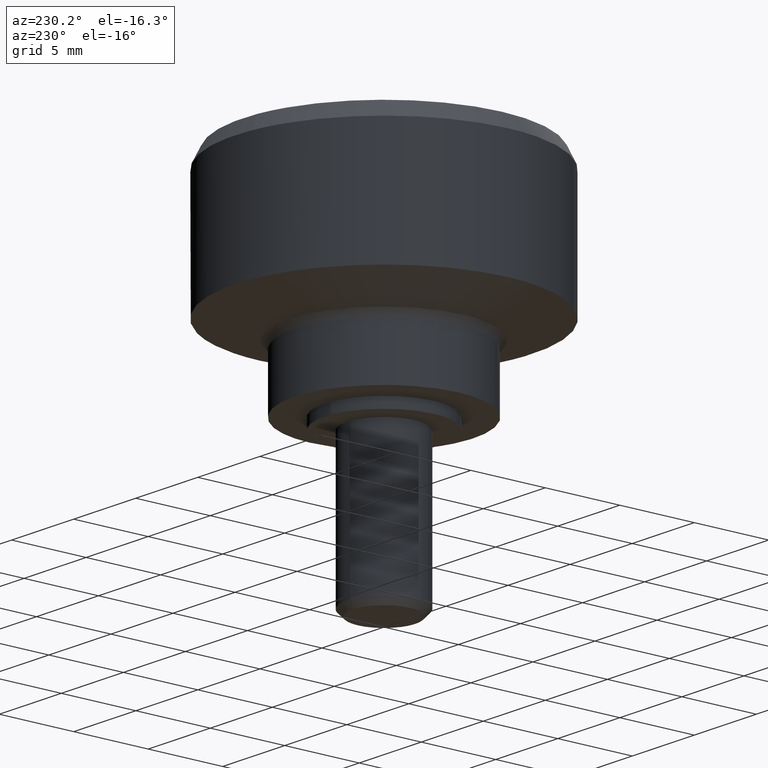
[diagram: clean part render]
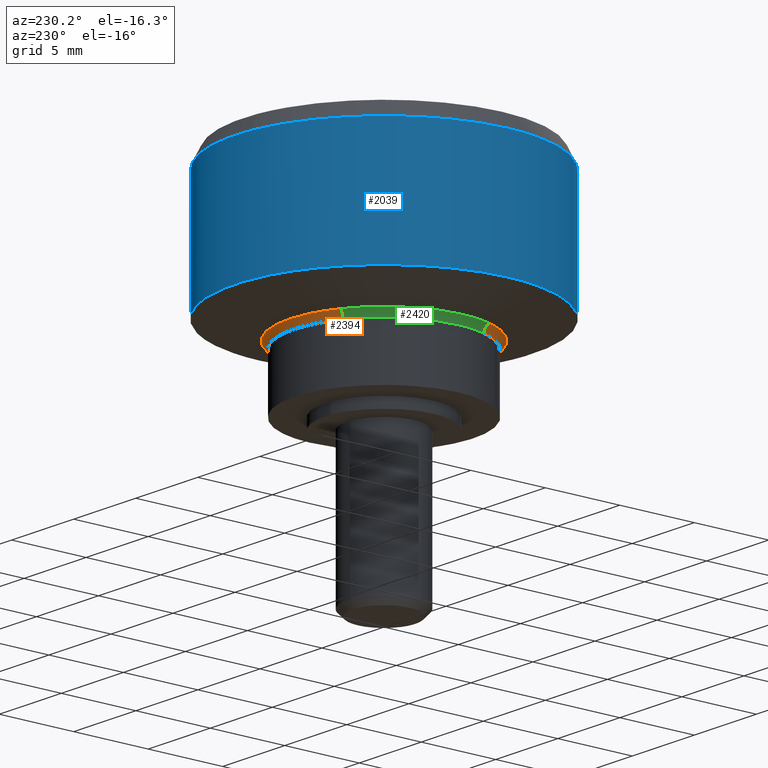
[diagram: same view with three faces highlighted in distinct colors, each labeled with its STEP entity id]
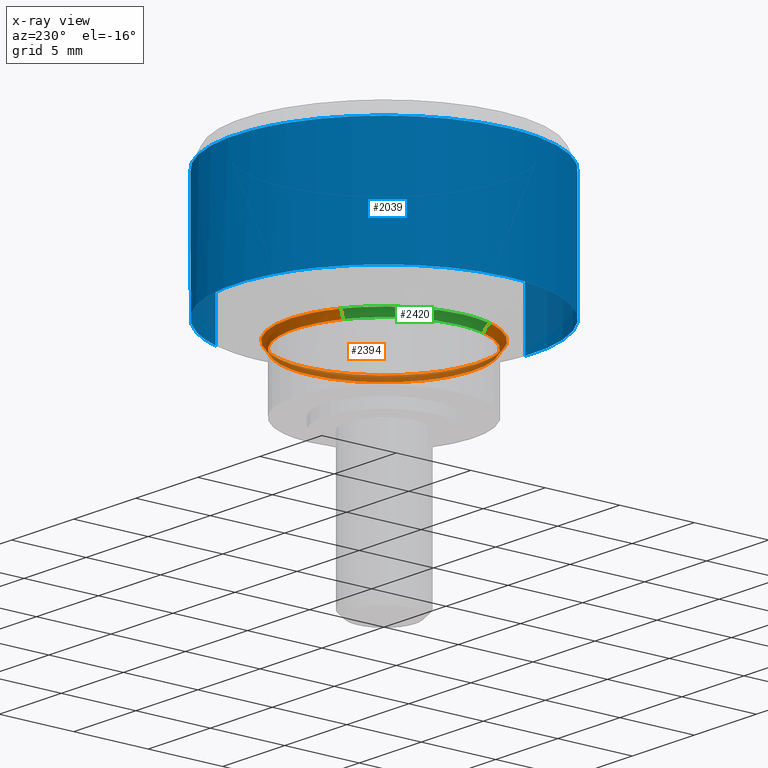
[diagram: x-ray of the same camera — body ghosted, the three highlighted faces saturated]
A machine part, auxiliary view with three faces highlighted in distinct colors.
The next image is the same camera in x-ray (body ghosted, the three faces saturated) — at least one of them is partly hidden behind the body in this view.
Their STEP definitions:

[orange] entity #2394 — the highlighted face is a freeform B-spline surface patch.
#1465=CARTESIAN_POINT('',(-2.250409667842005,-5.561983128963910,4.336761000009336));
#1466=VERTEX_POINT('',#1465);
#1467=CARTESIAN_POINT('',(-5.657943215357182,-1.996917267137929,4.336761000085410));
#1468=VERTEX_POINT('',#1467);
#1469=CARTESIAN_POINT('',(-2.250409667842005,-5.561983128963910,4.336761000009336));
#1470=CARTESIAN_POINT('',(-4.757737865000474,-4.547504033198051,4.336761000030990));
#1471=CARTESIAN_POINT('',(-5.657943215357182,-1.996917267137929,4.336761000085410));
#1479=(BOUNDED_CURVE()B_SPLINE_CURVE(2,(#1469,#1470,#1471),.UNSPECIFIED.,.F.,.U.)B_SPLINE_CURVE_WITH_KNOTS((3,3),(0.813681085114282,0.943451214484705),.UNSPECIFIED.)CURVE()GEOMETRIC_REPRESENTATION_ITEM()RATIONAL_B_SPLINE_CURVE((0.888794390059269,0.814213340013481,0.897469272749625))REPRESENTATION_ITEM(''));
#1480=EDGE_CURVE('',#1466,#1468,#1479,.T.);
#1497=CARTESIAN_POINT('',(-2.953789897803762,5.222559261476352,4.336761000082190));
#1498=VERTEX_POINT('',#1497);
#1512=CARTESIAN_POINT('',(6.0,0.0,4.336761000000000));
#1513=VERTEX_POINT('',#1512);
#1514=CARTESIAN_POINT('',(-2.953789897803762,5.222559261476353,4.336761000082190));
#1515=CARTESIAN_POINT('',(-1.579206576138484,6.000000000000001,4.336761000000000));
#1516=CARTESIAN_POINT('',(0.0,6.0,4.336761000000000));
#1517=CARTESIAN_POINT('',(6.0,6.0,4.336760999999999));
#1518=CARTESIAN_POINT('',(6.0,0.0,4.336761000000000));
#1526=(BOUNDED_CURVE()B_SPLINE_CURVE(2,(#1514,#1515,#1516,#1517,#1518),.UNSPECIFIED.,.F.,.U.)B_SPLINE_CURVE_WITH_KNOTS((3,2,3),(0.166092119980795,0.250000000000000,0.500000000000000),.UNSPECIFIED.)CURVE()GEOMETRIC_REPRESENTATION_ITEM()RATIONAL_B_SPLINE_CURVE((0.869379581133902,0.901695803749449,1.0,0.707106781186548,1.0))REPRESENTATION_ITEM(''));
#1527=EDGE_CURVE('',#1498,#1513,#1526,.T.);
#1529=CARTESIAN_POINT('',(1.400665940389359,-5.834221021129725,4.336761000000011));
#1530=VERTEX_POINT('',#1529);
#1531=CARTESIAN_POINT('',(6.0,0.0,4.336761000000000));
#1532=CARTESIAN_POINT('',(6.0,-4.730023812553404,4.336761000000001));
#1533=CARTESIAN_POINT('',(1.400665940389359,-5.834221021129724,4.336761000000011));
#1541=(BOUNDED_CURVE()B_SPLINE_CURVE(2,(#1531,#1532,#1533),.UNSPECIFIED.,.F.,.U.)B_SPLINE_CURVE_WITH_KNOTS((3,3),(0.500000000000000,0.710110004683507),.UNSPECIFIED.)CURVE()GEOMETRIC_REPRESENTATION_ITEM()RATIONAL_B_SPLINE_CURVE((1.0,0.753840817693352,0.921445690965409))REPRESENTATION_ITEM(''));
#1542=EDGE_CURVE('',#1513,#1530,#1541,.T.);
#1620=CARTESIAN_POINT('',(1.400665940389359,-5.834221021129724,4.336761000000011));
#1621=CARTESIAN_POINT('',(0.710143542809743,-6.0,4.336760999999999));
#1622=CARTESIAN_POINT('',(0.0,-6.0,4.336761000000000));
#1623=CARTESIAN_POINT('',(-1.167832356823583,-6.0,4.336761000000001));
#1624=CARTESIAN_POINT('',(-2.250409667842005,-5.561983128963910,4.336761000009336));
#1632=(BOUNDED_CURVE()B_SPLINE_CURVE(2,(#1620,#1621,#1622,#1623,#1624),.UNSPECIFIED.,.F.,.U.)B_SPLINE_CURVE_WITH_KNOTS((3,2,3),(0.710110004683507,0.750000000000000,0.813681085114282),.UNSPECIFIED.)CURVE()GEOMETRIC_REPRESENTATION_ITEM()RATIONAL_B_SPLINE_CURVE((0.921445690965409,0.953265963493195,1.0,0.925392968013378,0.888794390059269))REPRESENTATION_ITEM(''));
#1633=EDGE_CURVE('',#1530,#1466,#1632,.T.);
#1690=CARTESIAN_POINT('',(-1.588775553440524,6.143339237181422,4.812278946778488));
#1691=VERTEX_POINT('',#1690);
#1697=CARTESIAN_POINT('',(-3.123857866102979,5.523254325640013,4.812278568502218));
#1698=VERTEX_POINT('',#1697);
#1699=CARTESIAN_POINT('',(-3.123857866102979,5.523254325640013,4.812278568502218));
#1700=CARTESIAN_POINT('',(-2.397111881509354,5.934289303073338,4.812278784216334));
#1701=CARTESIAN_POINT('',(-1.588775553440524,6.143339237181422,4.812278946778488));
#1709=(BOUNDED_CURVE()B_SPLINE_CURVE(2,(#1699,#1700,#1701),.UNSPECIFIED.,.F.,.U.)B_SPLINE_CURVE_WITH_KNOTS((3,3),(0.166092119980186,0.207273770514564),.UNSPECIFIED.)CURVE()GEOMETRIC_REPRESENTATION_ITEM()RATIONAL_B_SPLINE_CURVE((0.869379581133433,0.885240253409031,0.916996154823670))REPRESENTATION_ITEM(''));
#1710=EDGE_CURVE('',#1698,#1691,#1709,.T.);
#1727=CARTESIAN_POINT('',(-5.983706029109358,-2.111892155186222,4.812278568620588));
#1728=VERTEX_POINT('',#1727);
#1742=CARTESIAN_POINT('',(1.588775549394165,-6.143339221669838,4.812279000000376));
#1743=VERTEX_POINT('',#1742);
#1744=CARTESIAN_POINT('',(1.588775549394165,-6.143339221669838,4.812279000000376));
#1745=CARTESIAN_POINT('',(0.807244089216719,-6.345457000000002,4.812279000000100));
#1746=CARTESIAN_POINT('',(0.0,-6.345457000000000,4.812279000000100));
#1747=CARTESIAN_POINT('',(-4.489509417464306,-6.345457000000000,4.812279000000099));
#1748=CARTESIAN_POINT('',(-5.983706029109359,-2.111892155186222,4.812278568620588));
#1756=(BOUNDED_CURVE()B_SPLINE_CURVE(2,(#1744,#1745,#1746,#1747,#1748),.UNSPECIFIED.,.F.,.U.)B_SPLINE_CURVE_WITH_KNOTS((3,2,3),(0.707273770289226,0.750000000000000,0.943451214484738),.UNSPECIFIED.)CURVE()GEOMETRIC_REPRESENTATION_ITEM()RATIONAL_B_SPLINE_CURVE((0.916996154476147,0.949943108208994,1.0,0.773357804424774,0.897469272749668))REPRESENTATION_ITEM(''));
#1757=EDGE_CURVE('',#1743,#1728,#1756,.T.);
#1863=CARTESIAN_POINT('',(6.345457000000000,0.0,4.812279000000100));
#1864=VERTEX_POINT('',#1863);
#1865=CARTESIAN_POINT('',(6.345457000000000,0.0,4.812279000000100));
#1866=CARTESIAN_POINT('',(6.345457000000002,-4.913177755351818,4.812279000000101));
#1867=CARTESIAN_POINT('',(1.588775549394165,-6.143339221669838,4.812279000000376));
#1875=(BOUNDED_CURVE()B_SPLINE_CURVE(2,(#1865,#1866,#1867),.UNSPECIFIED.,.F.,.U.)B_SPLINE_CURVE_WITH_KNOTS((3,3),(0.500000000000000,0.707273770289227),.UNSPECIFIED.)CURVE()GEOMETRIC_REPRESENTATION_ITEM()RATIONAL_B_SPLINE_CURVE((1.0,0.757163672977553,0.916996154476148))REPRESENTATION_ITEM(''));
#1876=EDGE_CURVE('',#1864,#1743,#1875,.T.);
#1878=CARTESIAN_POINT('',(-1.588775553440524,6.143339237181422,4.812278946778488));
#1879=CARTESIAN_POINT('',(-0.807244084734988,6.345456999999999,4.812279000000100));
#1880=CARTESIAN_POINT('',(0.0,6.345457000000000,4.812279000000100));
#1881=CARTESIAN_POINT('',(6.345457000000001,6.345457000000001,4.812279000000099));
#1882=CARTESIAN_POINT('',(6.345457000000000,0.0,4.812279000000100));
#1890=(BOUNDED_CURVE()B_SPLINE_CURVE(2,(#1878,#1879,#1880,#1881,#1882),.UNSPECIFIED.,.F.,.U.)B_SPLINE_CURVE_WITH_KNOTS((3,2,3),(0.207273770514564,0.250000000000000,0.500000000000000),.UNSPECIFIED.)CURVE()GEOMETRIC_REPRESENTATION_ITEM()RATIONAL_B_SPLINE_CURVE((0.916996154823670,0.949943108472993,1.0,0.707106781186548,1.0))REPRESENTATION_ITEM(''));
#1891=EDGE_CURVE('',#1691,#1864,#1890,.T.);
#2323=CARTESIAN_POINT('',(-2.954206743344072,5.223298383775240,4.307643239702532));
#2324=CARTESIAN_POINT('',(-2.494850538449292,5.483102265995020,4.307643239702533));
#2325=CARTESIAN_POINT('',(-1.997199685830433,5.658743403202467,4.307643239702532));
#2326=CARTESIAN_POINT('',(3.661543717372034,7.655943089032901,4.307643239702532));
#2327=CARTESIAN_POINT('',(5.658743403202467,1.997199685830434,4.307643239702532));
#2328=CARTESIAN_POINT('',(7.655943089032901,-3.661543717372033,4.307643239702532));
#2329=CARTESIAN_POINT('',(1.997199685830435,-5.658743403202467,4.307643239702532));
#2330=CARTESIAN_POINT('',(-3.661543717372032,-7.655943089032901,4.307643239702532));
#2331=CARTESIAN_POINT('',(-5.658743403202467,-1.997199685830435,4.307643239702532));
#2332=CARTESIAN_POINT('',(-2.942461679212940,5.202532073282011,4.716622733270996));
#2333=CARTESIAN_POINT('',(-2.484931740573114,5.461303051063038,4.716622733270994));
#2334=CARTESIAN_POINT('',(-1.989259402556216,5.636245890351693,4.716622733270995));
#2335=CARTESIAN_POINT('',(3.646986487795477,7.625505292907909,4.716622733270996));
#2336=CARTESIAN_POINT('',(5.636245890351693,1.989259402556216,4.716622733270995));
#2337=CARTESIAN_POINT('',(7.625505292907909,-3.646986487795473,4.716622733270996));
#2338=CARTESIAN_POINT('',(1.989259402556217,-5.636245890351693,4.716622733270995));
#2339=CARTESIAN_POINT('',(-3.646986487795473,-7.625505292907909,4.716622733270996));
#2340=CARTESIAN_POINT('',(-5.636245890351693,-1.989259402556219,4.716622733270995));
#2341=CARTESIAN_POINT('',(-3.137560499024141,5.547484014269984,4.820439982605432));
#2342=CARTESIAN_POINT('',(-2.649694209128654,5.823412704833858,4.820439982605433));
#2343=CARTESIAN_POINT('',(-2.121156502348136,6.009955063572760,4.820439982605433));
#2344=CARTESIAN_POINT('',(3.888798561224623,8.131111565920898,4.820439982605432));
#2345=CARTESIAN_POINT('',(6.009955063572760,2.121156502348136,4.820439982605433));
#2346=CARTESIAN_POINT('',(8.131111565920898,-3.888798561224620,4.820439982605432));
#2347=CARTESIAN_POINT('',(2.121156502348138,-6.009955063572758,4.820439982605433));
#2348=CARTESIAN_POINT('',(-3.888798561224618,-8.131111565920898,4.820439982605432));
#2349=CARTESIAN_POINT('',(-6.009955063572758,-2.121156502348138,4.820439982605433));
#2357=(BOUNDED_SURFACE()B_SPLINE_SURFACE(2,2,((#2323,#2332,#2341),(#2324,#2333,#2342),(#2325,#2334,#2343),(#2326,#2335,#2344),(#2327,#2336,#2345),(#2328,#2337,#2346),(#2329,#2338,#2347),(#2330,#2339,#2348),(#2331,#2340,#2349)),.UNSPECIFIED.,.F.,.F.,.U.)B_SPLINE_SURFACE_WITH_KNOTS((3,2,2,2,3),(3,3),(0.0,1.267152919695139,11.826770654257521,22.386388388819899,32.946006123382283),(0.0,0.714714036579353),.UNSPECIFIED.)GEOMETRIC_REPRESENTATION_ITEM()RATIONAL_B_SPLINE_SURFACE(((0.859647271357752,0.666406561997751,0.863418595236505),(0.884124150461246,0.685381266385553,0.888002855869280),(0.916330560634972,0.710347975166311,0.920350557486350),(0.647943553233460,0.502291870242232,0.650786120267418),(0.916330560634972,0.710347975166311,0.920350557486350),(0.647943553233460,0.502291870242232,0.650786120267418),(0.916330560634972,0.710347975166311,0.920350557486350),(0.647943553233460,0.502291870242232,0.650786120267418),(0.916330560634972,0.710347975166311,0.920350557486350)))REPRESENTATION_ITEM('')SURFACE());
#2358=ORIENTED_EDGE('',*,*,#1527,.F.);
#2359=CARTESIAN_POINT('',(-2.953789897803762,5.222559261476351,4.336761000082190));
#2360=CARTESIAN_POINT('',(-2.953789897861866,5.222559261580685,4.700004774826589));
#2361=CARTESIAN_POINT('',(-3.123857866102979,5.523254325640014,4.812278568502218));
#2369=(BOUNDED_CURVE()B_SPLINE_CURVE(2,(#2359,#2360,#2361),.UNSPECIFIED.,.F.,.U.)B_SPLINE_CURVE_WITH_KNOTS((3,3),(-1.673208012036451,-0.312327419593317),.UNSPECIFIED.)CURVE()GEOMETRIC_REPRESENTATION_ITEM()RATIONAL_B_SPLINE_CURVE((0.842900705191702,0.683324374790841,0.846329367210105))REPRESENTATION_ITEM(''));
#2370=EDGE_CURVE('',#1498,#1698,#2369,.T.);
#2371=ORIENTED_EDGE('',*,*,#2370,.T.);
#2372=ORIENTED_EDGE('',*,*,#1710,.T.);
#2373=ORIENTED_EDGE('',*,*,#1891,.T.);
#2374=ORIENTED_EDGE('',*,*,#1876,.T.);
#2375=ORIENTED_EDGE('',*,*,#1757,.T.);
#2376=CARTESIAN_POINT('',(-5.657943215357182,-1.996917267137929,4.336761000085411));
#2377=CARTESIAN_POINT('',(-5.657943215474208,-1.996917267179222,4.700004775413200));
#2378=CARTESIAN_POINT('',(-5.983706029109358,-2.111892155186222,4.812278568620588));
#2386=(BOUNDED_CURVE()B_SPLINE_CURVE(2,(#2376,#2377,#2378),.UNSPECIFIED.,.F.,.U.)B_SPLINE_CURVE_WITH_KNOTS((3,3),(-1.673208012021567,-0.312327417816287),.UNSPECIFIED.)CURVE()GEOMETRIC_REPRESENTATION_ITEM()RATIONAL_B_SPLINE_CURVE((0.898479810761481,0.728381351428666,0.902134552023553))REPRESENTATION_ITEM(''));
#2387=EDGE_CURVE('',#1468,#1728,#2386,.T.);
#2388=ORIENTED_EDGE('',*,*,#2387,.F.);
#2389=ORIENTED_EDGE('',*,*,#1480,.F.);
#2390=ORIENTED_EDGE('',*,*,#1633,.F.);
#2391=ORIENTED_EDGE('',*,*,#1542,.F.);
#2392=EDGE_LOOP('',(#2358,#2371,#2372,#2373,#2374,#2375,#2388,#2389,#2390,#2391));
#2393=FACE_OUTER_BOUND('',#2392,.T.);
#2394=ADVANCED_FACE('',(#2393),#2357,.F.);

[blue] entity #2039 — the highlighted face is a freeform B-spline surface patch.
#1673=CARTESIAN_POINT('',(-10.0,0.0,6.0));
#1674=VERTEX_POINT('',#1673);
#1675=CARTESIAN_POINT('',(-2.503800040556031,9.681476403779540,6.000000000000462));
#1676=VERTEX_POINT('',#1675);
#1677=CARTESIAN_POINT('',(-10.0,0.0,6.0));
#1678=CARTESIAN_POINT('',(-10.0,7.742827278399353,6.0));
#1679=CARTESIAN_POINT('',(-2.503800040556032,9.681476403779540,6.000000000000462));
#1687=(BOUNDED_CURVE()B_SPLINE_CURVE(2,(#1677,#1678,#1679),.UNSPECIFIED.,.F.,.U.)B_SPLINE_CURVE_WITH_KNOTS((3,3),(0.0,0.207273770289201),.UNSPECIFIED.)CURVE()GEOMETRIC_REPRESENTATION_ITEM()RATIONAL_B_SPLINE_CURVE((1.0,0.757163672977583,0.916996154476108))REPRESENTATION_ITEM(''));
#1688=EDGE_CURVE('',#1674,#1676,#1687,.T.);
#1766=CARTESIAN_POINT('',(0.610483566912849,-9.981348096050251,6.0));
#1767=VERTEX_POINT('',#1766);
#1781=CARTESIAN_POINT('',(0.610483566912849,-9.981348096050251,6.0));
#1782=CARTESIAN_POINT('',(0.305526716204665,-9.999999999999998,6.000000000000001));
#1783=CARTESIAN_POINT('',(0.0,-10.0,6.0));
#1784=CARTESIAN_POINT('',(-10.000000000000002,-10.000000000000002,6.0));
#1785=CARTESIAN_POINT('',(-10.0,0.0,6.0));
#1793=(BOUNDED_CURVE()B_SPLINE_CURVE(2,(#1781,#1782,#1783,#1784,#1785),.UNSPECIFIED.,.F.,.U.)B_SPLINE_CURVE_WITH_KNOTS((3,2,3),(0.739332993849996,0.750000000000000,1.0),.UNSPECIFIED.)CURVE()GEOMETRIC_REPRESENTATION_ITEM()RATIONAL_B_SPLINE_CURVE((0.976072109415231,0.987502824934489,1.0,0.707106781186548,1.0))REPRESENTATION_ITEM(''));
#1794=EDGE_CURVE('',#1767,#1674,#1793,.T.);
#1817=CARTESIAN_POINT('',(9.361436365633708,3.516178205408258,6.0));
#1818=VERTEX_POINT('',#1817);
#1819=CARTESIAN_POINT('',(-2.503800040556032,9.681476403779540,6.000000000000462));
#1820=CARTESIAN_POINT('',(-1.272160680022289,10.000000000000002,6.0));
#1821=CARTESIAN_POINT('',(0.0,10.0,6.0));
#1822=CARTESIAN_POINT('',(6.926097172859107,9.999999999999998,6.0));
#1823=CARTESIAN_POINT('',(9.361436365633708,3.516178205408257,5.999999999999999));
#1831=(BOUNDED_CURVE()B_SPLINE_CURVE(2,(#1819,#1820,#1821,#1822,#1823),.UNSPECIFIED.,.F.,.U.)B_SPLINE_CURVE_WITH_KNOTS((3,2,3),(0.207273770289201,0.250000000000000,0.440284196857223),.UNSPECIFIED.)CURVE()GEOMETRIC_REPRESENTATION_ITEM()RATIONAL_B_SPLINE_CURVE((0.916996154476108,0.949943108208965,1.0,0.777068196372621,0.893499586402586))REPRESENTATION_ITEM(''));
#1832=EDGE_CURVE('',#1676,#1818,#1831,.T.);
#1915=CARTESIAN_POINT('',(9.361437029675599,3.516176437468118,14.0));
#1916=VERTEX_POINT('',#1915);
#1932=CARTESIAN_POINT('',(0.610485395348940,-9.981347984218679,13.999999999999870));
#1933=VERTEX_POINT('',#1932);
#1947=CARTESIAN_POINT('',(0.610485395348940,-9.981347984218679,13.999999999999870));
#1948=CARTESIAN_POINT('',(0.610483566912849,-9.981348096050251,6.0));
#1949=QUASI_UNIFORM_CURVE('',1,(#1947,#1948),.UNSPECIFIED.,.F.,.U.);
#1950=EDGE_CURVE('',#1933,#1767,#1949,.T.);
#1955=CARTESIAN_POINT('',(9.361437029675599,3.516176437468118,14.0));
#1956=CARTESIAN_POINT('',(9.361436365633708,3.516178205408258,6.0));
#1957=QUASI_UNIFORM_CURVE('',1,(#1955,#1956),.UNSPECIFIED.,.F.,.U.);
#1958=EDGE_CURVE('',#1916,#1818,#1957,.T.);
#1963=CARTESIAN_POINT('',(0.610485395348570,-9.981347984218667,14.199999999999999));
#1964=CARTESIAN_POINT('',(-9.370862588870097,-10.591833379567237,14.200000000000006));
#1965=CARTESIAN_POINT('',(-9.981347984218667,-0.610485395348570,14.199999999999999));
#1966=CARTESIAN_POINT('',(-10.591833379567237,9.370862588870097,14.200000000000006));
#1967=CARTESIAN_POINT('',(-0.610485395348570,9.981347984218667,14.199999999999999));
#1968=CARTESIAN_POINT('',(6.763695818030652,10.432372228693419,14.199999999999999));
#1969=CARTESIAN_POINT('',(9.361435787766570,3.516179743915722,14.200000000000010));
#1970=CARTESIAN_POINT('',(0.610485395348570,-9.981347984218667,5.795000000000000));
#1971=CARTESIAN_POINT('',(-9.370862588870097,-10.591833379567237,5.795000000000000));
#1972=CARTESIAN_POINT('',(-9.981347984218667,-0.610485395348570,5.795000000000000));
#1973=CARTESIAN_POINT('',(-10.591833379567237,9.370862588870097,5.795000000000000));
#1974=CARTESIAN_POINT('',(-0.610485395348570,9.981347984218667,5.795000000000000));
#1975=CARTESIAN_POINT('',(6.763695818030652,10.432372228693419,5.795000000000000));
#1976=CARTESIAN_POINT('',(9.361435787766570,3.516179743915722,5.795000000000001));
#1984=(BOUNDED_SURFACE()B_SPLINE_SURFACE(2,1,((#1963,#1970),(#1964,#1971),(#1965,#1972),(#1966,#1973),(#1967,#1974),(#1968,#1975),(#1969,#1976)),.UNSPECIFIED.,.F.,.F.,.U.)B_SPLINE_SURFACE_WITH_KNOTS((3,2,2,3),(2,2),(0.0,16.568542494923800,33.137084989847587,46.391918985786631),(0.0,8.405000000000003),.UNSPECIFIED.)GEOMETRIC_REPRESENTATION_ITEM()RATIONAL_B_SPLINE_SURFACE(((1.0,1.0),(0.707106781186548,0.707106781186548),(1.0,1.0),(0.707106781186548,0.707106781186548),(1.0,1.0),(0.765685424949238,0.765685424949238),(0.906274169979695,0.906274169979695)))REPRESENTATION_ITEM('')SURFACE());
#1985=CARTESIAN_POINT('',(-1.180342346567977,9.930095263636654,13.999999999999931));
#1986=VERTEX_POINT('',#1985);
#1987=CARTESIAN_POINT('',(-1.180342346567977,9.930095263636654,13.999999999999927));
#1988=CARTESIAN_POINT('',(-0.592241196519493,10.0,14.000000000000002));
#1989=CARTESIAN_POINT('',(0.0,10.0,14.0));
#1990=CARTESIAN_POINT('',(6.926098570099488,10.0,13.999999999999995));
#1991=CARTESIAN_POINT('',(9.361437029675599,3.516176437468118,13.999999999999996));
#1999=(BOUNDED_CURVE()B_SPLINE_CURVE(2,(#1987,#1988,#1989,#1990,#1991),.UNSPECIFIED.,.F.,.U.)B_SPLINE_CURVE_WITH_KNOTS((3,2,3),(0.229562473515631,0.250000000000000,0.440284226686614),.UNSPECIFIED.)CURVE()GEOMETRIC_REPRESENTATION_ITEM()RATIONAL_B_SPLINE_CURVE((0.956026754187860,0.976055948333632,1.0,0.777068161425316,0.893499622906702))REPRESENTATION_ITEM(''));
#2000=EDGE_CURVE('',#1986,#1916,#1999,.T.);
#2001=ORIENTED_EDGE('',*,*,#2000,.T.);
#2002=ORIENTED_EDGE('',*,*,#1958,.T.);
#2003=ORIENTED_EDGE('',*,*,#1832,.F.);
#2004=ORIENTED_EDGE('',*,*,#1688,.F.);
#2005=ORIENTED_EDGE('',*,*,#1794,.F.);
#2006=ORIENTED_EDGE('',*,*,#1950,.F.);
#2007=CARTESIAN_POINT('',(-10.0,0.0,14.0));
#2008=VERTEX_POINT('',#2007);
#2009=CARTESIAN_POINT('',(0.610485395348940,-9.981347984218679,13.999999999999876));
#2010=CARTESIAN_POINT('',(0.305527632986626,-10.0,14.000000000000002));
#2011=CARTESIAN_POINT('',(0.0,-10.0,14.0));
#2012=CARTESIAN_POINT('',(-10.000000000000002,-10.000000000000002,13.999999999999998));
#2013=CARTESIAN_POINT('',(-10.0,0.0,14.0));
#2021=(BOUNDED_CURVE()B_SPLINE_CURVE(2,(#2009,#2010,#2011,#2012,#2013),.UNSPECIFIED.,.F.,.U.)B_SPLINE_CURVE_WITH_KNOTS((3,2,3),(0.739332962241943,0.750000000000000,1.0),.UNSPECIFIED.)CURVE()GEOMETRIC_REPRESENTATION_ITEM()RATIONAL_B_SPLINE_CURVE((0.976072041673147,0.987502787903352,1.0,0.707106781186548,1.0))REPRESENTATION_ITEM(''));
#2022=EDGE_CURVE('',#1933,#2008,#2021,.T.);
#2023=ORIENTED_EDGE('',*,*,#2022,.T.);
#2024=CARTESIAN_POINT('',(-10.0,0.0,14.0));
#2025=CARTESIAN_POINT('',(-10.0,8.881745259512975,14.000000000000002));
#2026=CARTESIAN_POINT('',(-1.180342346567977,9.930095263636654,13.999999999999929));
#2034=(BOUNDED_CURVE()B_SPLINE_CURVE(2,(#2024,#2025,#2026),.UNSPECIFIED.,.F.,.U.)B_SPLINE_CURVE_WITH_KNOTS((3,3),(0.0,0.229562473515631),.UNSPECIFIED.)CURVE()GEOMETRIC_REPRESENTATION_ITEM()RATIONAL_B_SPLINE_CURVE((1.0,0.731050832852916,0.956026754187860))REPRESENTATION_ITEM(''));
#2035=EDGE_CURVE('',#2008,#1986,#2034,.T.);
#2036=ORIENTED_EDGE('',*,*,#2035,.T.);
#2037=EDGE_LOOP('',(#2001,#2002,#2003,#2004,#2005,#2006,#2023,#2036));
#2038=FACE_OUTER_BOUND('',#2037,.T.);
#2039=ADVANCED_FACE('',(#2038),#1984,.T.);

[green] entity #2420 — the highlighted face is a freeform B-spline surface patch.
#1467=CARTESIAN_POINT('',(-5.657943215357182,-1.996917267137929,4.336761000085410));
#1468=VERTEX_POINT('',#1467);
#1482=CARTESIAN_POINT('',(-6.0,0.0,4.336761000000000));
#1483=VERTEX_POINT('',#1482);
#1484=CARTESIAN_POINT('',(-5.657943215357182,-1.996917267137928,4.336761000085410));
#1485=CARTESIAN_POINT('',(-6.0,-1.027754500214430,4.336761000000000));
#1486=CARTESIAN_POINT('',(-6.0,0.0,4.336761000000000));
#1494=(BOUNDED_CURVE()B_SPLINE_CURVE(2,(#1484,#1485,#1486),.UNSPECIFIED.,.F.,.U.)B_SPLINE_CURVE_WITH_KNOTS((3,3),(0.943451214484705,1.0),.UNSPECIFIED.)CURVE()GEOMETRIC_REPRESENTATION_ITEM()RATIONAL_B_SPLINE_CURVE((0.897469272749625,0.933748976761735,1.0))REPRESENTATION_ITEM(''));
#1495=EDGE_CURVE('',#1468,#1483,#1494,.T.);
#1497=CARTESIAN_POINT('',(-2.953789897803762,5.222559261476352,4.336761000082190));
#1498=VERTEX_POINT('',#1497);
#1499=CARTESIAN_POINT('',(-6.0,0.0,4.336761000000000));
#1500=CARTESIAN_POINT('',(-6.0,3.499675101438275,4.336760999999999));
#1501=CARTESIAN_POINT('',(-2.953789897803762,5.222559261476353,4.336761000082190));
#1509=(BOUNDED_CURVE()B_SPLINE_CURVE(2,(#1499,#1500,#1501),.UNSPECIFIED.,.F.,.U.)B_SPLINE_CURVE_WITH_KNOTS((3,3),(0.0,0.166092119980795),.UNSPECIFIED.)CURVE()GEOMETRIC_REPRESENTATION_ITEM()RATIONAL_B_SPLINE_CURVE((1.0,0.805410977437099,0.869379581133902))REPRESENTATION_ITEM(''));
#1510=EDGE_CURVE('',#1483,#1498,#1509,.T.);
#1697=CARTESIAN_POINT('',(-3.123857866102979,5.523254325640013,4.812278568502218));
#1698=VERTEX_POINT('',#1697);
#1712=CARTESIAN_POINT('',(-6.345457000000000,0.0,4.812279000000100));
#1713=VERTEX_POINT('',#1712);
#1714=CARTESIAN_POINT('',(-6.345457000000000,0.0,4.812279000000100));
#1715=CARTESIAN_POINT('',(-6.345457000000000,3.701172978341015,4.812279000000100));
#1716=CARTESIAN_POINT('',(-3.123857866102979,5.523254325640013,4.812278568502218));
#1724=(BOUNDED_CURVE()B_SPLINE_CURVE(2,(#1714,#1715,#1716),.UNSPECIFIED.,.F.,.U.)B_SPLINE_CURVE_WITH_KNOTS((3,3),(0.0,0.166092119980186),.UNSPECIFIED.)CURVE()GEOMETRIC_REPRESENTATION_ITEM()RATIONAL_B_SPLINE_CURVE((1.0,0.805410977437813,0.869379581133433))REPRESENTATION_ITEM(''));
#1725=EDGE_CURVE('',#1713,#1698,#1724,.T.);
#1727=CARTESIAN_POINT('',(-5.983706029109358,-2.111892155186222,4.812278568620588));
#1728=VERTEX_POINT('',#1727);
#1729=CARTESIAN_POINT('',(-5.983706029109358,-2.111892155186222,4.812278568620588));
#1730=CARTESIAN_POINT('',(-6.345456999999999,-1.086928664610530,4.812279000000099));
#1731=CARTESIAN_POINT('',(-6.345457000000000,0.0,4.812279000000100));
#1739=(BOUNDED_CURVE()B_SPLINE_CURVE(2,(#1729,#1730,#1731),.UNSPECIFIED.,.F.,.U.)B_SPLINE_CURVE_WITH_KNOTS((3,3),(0.943451214484737,1.0),.UNSPECIFIED.)CURVE()GEOMETRIC_REPRESENTATION_ITEM()RATIONAL_B_SPLINE_CURVE((0.897469272749667,0.933748976761772,1.0))REPRESENTATION_ITEM(''));
#1740=EDGE_CURVE('',#1728,#1713,#1739,.T.);
#2359=CARTESIAN_POINT('',(-2.953789897803762,5.222559261476351,4.336761000082190));
#2360=CARTESIAN_POINT('',(-2.953789897861866,5.222559261580685,4.700004774826589));
#2361=CARTESIAN_POINT('',(-3.123857866102979,5.523254325640014,4.812278568502218));
#2369=(BOUNDED_CURVE()B_SPLINE_CURVE(2,(#2359,#2360,#2361),.UNSPECIFIED.,.F.,.U.)B_SPLINE_CURVE_WITH_KNOTS((3,3),(-1.673208012036451,-0.312327419593317),.UNSPECIFIED.)CURVE()GEOMETRIC_REPRESENTATION_ITEM()RATIONAL_B_SPLINE_CURVE((0.842900705191702,0.683324374790841,0.846329367210105))REPRESENTATION_ITEM(''));
#2370=EDGE_CURVE('',#1498,#1698,#2369,.T.);
#2376=CARTESIAN_POINT('',(-5.657943215357182,-1.996917267137929,4.336761000085411));
#2377=CARTESIAN_POINT('',(-5.657943215474208,-1.996917267179222,4.700004775413200));
#2378=CARTESIAN_POINT('',(-5.983706029109358,-2.111892155186222,4.812278568620588));
#2386=(BOUNDED_CURVE()B_SPLINE_CURVE(2,(#2376,#2377,#2378),.UNSPECIFIED.,.F.,.U.)B_SPLINE_CURVE_WITH_KNOTS((3,3),(-1.673208012021567,-0.312327417816287),.UNSPECIFIED.)CURVE()GEOMETRIC_REPRESENTATION_ITEM()RATIONAL_B_SPLINE_CURVE((0.898479810761481,0.728381351428666,0.902134552023553))REPRESENTATION_ITEM(''));
#2387=EDGE_CURVE('',#1468,#1728,#2386,.T.);
#2395=CARTESIAN_POINT('',(-5.658743403063712,-1.997199685781460,4.307643242224984));
#2396=CARTESIAN_POINT('',(-7.333056350874579,2.746696187796017,4.307643242224983));
#2397=CARTESIAN_POINT('',(-2.954207644371736,5.223297874000507,4.307643242224981));
#2398=CARTESIAN_POINT('',(-5.636245894704561,-1.989259404092519,4.716622689690920));
#2399=CARTESIAN_POINT('',(-7.303902264039221,2.735776127273123,4.716622689690919));
#2400=CARTESIAN_POINT('',(-2.942462579002994,5.202531569679475,4.716622689690919));
#2401=CARTESIAN_POINT('',(-6.009955015335018,-2.121156485323083,4.820439969204877));
#2402=CARTESIAN_POINT('',(-7.788184700124806,2.917170713291027,4.820439969204877));
#2403=CARTESIAN_POINT('',(-3.137561430868271,5.547483428466150,4.820439969204878));
#2411=(BOUNDED_SURFACE()B_SPLINE_SURFACE(2,2,((#2395,#2398,#2401),(#2396,#2399,#2402),(#2397,#2400,#2403)),.UNSPECIFIED.,.F.,.F.,.U.)B_SPLINE_SURFACE_WITH_KNOTS((3,3),(3,3),(0.0,9.269561694757437),(0.0,0.714713974112944),.UNSPECIFIED.)GEOMETRIC_REPRESENTATION_ITEM()RATIONAL_B_SPLINE_SURFACE(((0.916330558996146,0.710347993225788,0.920350522365911),(0.680149992905216,0.527258616237839,0.683133826665405),(0.859647223134323,0.666406542748680,0.863418515397790)))REPRESENTATION_ITEM('')SURFACE());
#2412=ORIENTED_EDGE('',*,*,#1510,.F.);
#2413=ORIENTED_EDGE('',*,*,#1495,.F.);
#2414=ORIENTED_EDGE('',*,*,#2387,.T.);
#2415=ORIENTED_EDGE('',*,*,#1740,.T.);
#2416=ORIENTED_EDGE('',*,*,#1725,.T.);
#2417=ORIENTED_EDGE('',*,*,#2370,.F.);
#2418=EDGE_LOOP('',(#2412,#2413,#2414,#2415,#2416,#2417));
#2419=FACE_OUTER_BOUND('',#2418,.T.);
#2420=ADVANCED_FACE('',(#2419),#2411,.F.);